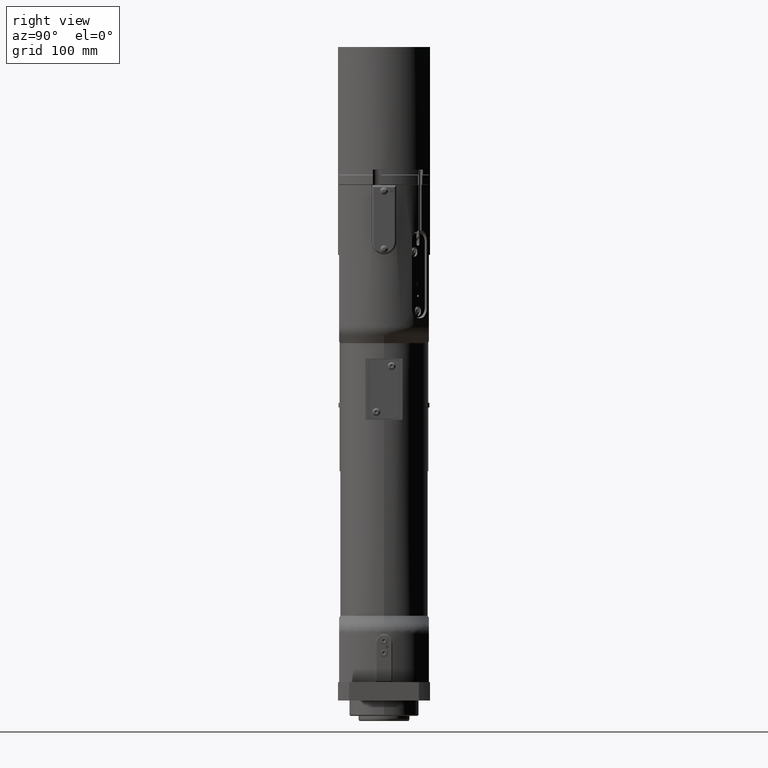
[diagram: clean part render]
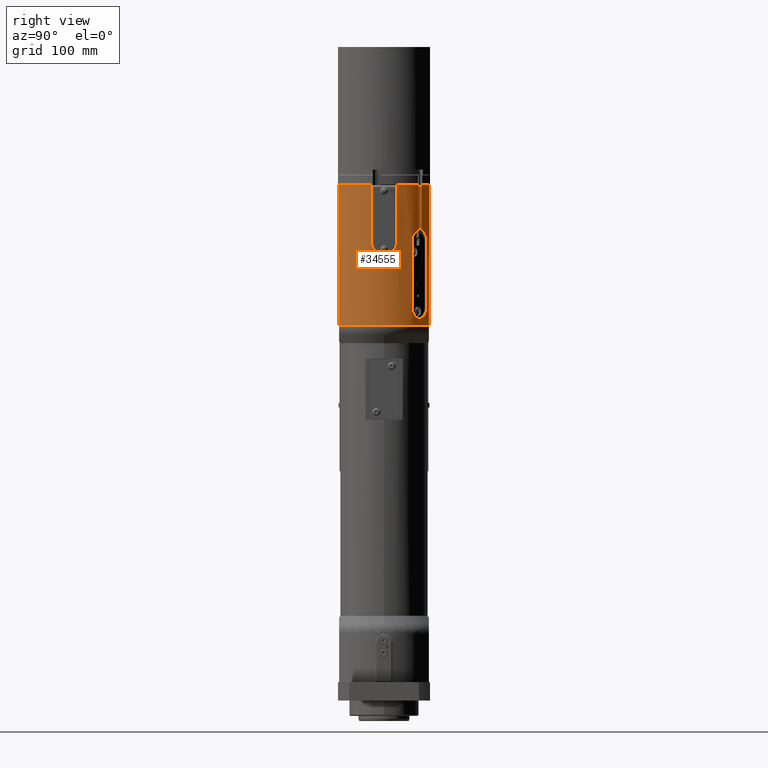
[diagram: same view with one face highlighted and labeled with its STEP entity id]
A machine part, right view. The second image highlights one B-rep face of the part: STEP entity #34555.
In plain terms, the highlighted cylindrical surface (partial cylindrical patch) has radius 50 mm, axis along (-0, 0, 1).
Its self-contained STEP definition (entity closure, byte-faithful):
#1740=B_SPLINE_CURVE_WITH_KNOTS('',3,(#56054,#56055,#56056,#56057,#56058,
#56059,#56060,#56061,#56062,#56063),.UNSPECIFIED.,.F.,.F.,(4,2,2,2,4),(0.,
0.385398252965855,0.770796505931711,1.15617134672731,1.54154618752291),
 .UNSPECIFIED.);
#1741=B_SPLINE_CURVE_WITH_KNOTS('',3,(#56065,#56066,#56067,#56068,#56069,
#56070,#56071,#56072,#56073,#56074),.UNSPECIFIED.,.F.,.F.,(4,2,2,2,4),(-1.54154618752291,
-1.15617134672731,-0.770796505931711,-0.385398252965856,0.),
 .UNSPECIFIED.);
#1742=B_SPLINE_CURVE_WITH_KNOTS('',3,(#56082,#56083,#56084,#56085,#56086,
#56087,#56088,#56089,#56090,#56091),.UNSPECIFIED.,.F.,.F.,(4,2,2,2,4),(3.08309237504583,
3.46849062801169,3.85388888097754,4.23926372177314,4.42858827578205),
 .UNSPECIFIED.);
#1745=B_SPLINE_CURVE_WITH_KNOTS('',3,(#56118,#56119,#56120,#56121,#56122,
#56123,#56124,#56125,#56126,#56127),.UNSPECIFIED.,.F.,.F.,(4,2,2,2,4),(1.73759647430961,
1.92692102831852,2.31229586911412,2.69769412207998,3.08309237504583),
 .UNSPECIFIED.);
#1748=B_SPLINE_CURVE_WITH_KNOTS('',3,(#56179,#56180,#56181,#56182,#56183,
#56184,#56185,#56186,#56187,#56188),.UNSPECIFIED.,.F.,.F.,(4,2,2,2,4),(-1.84628461301213,
-1.38474265699854,-0.923200700984961,-0.461600350492481,0.),
 .UNSPECIFIED.);
#1749=B_SPLINE_CURVE_WITH_KNOTS('',3,(#56190,#56191,#56192,#56193,#56194,
#56195,#56196,#56197,#56198,#56199),.UNSPECIFIED.,.F.,.F.,(4,2,2,2,4),(0.,
0.461600350492481,0.923200700984961,1.38474265699855,1.84628461301213),
 .UNSPECIFIED.);
#2984=FACE_OUTER_BOUND('',#4867,.T.);
#4867=EDGE_LOOP('',(#26944,#26945,#26946,#26947,#26948,#26949,#26950,#26951,
#26952,#26953,#26954,#26955,#26956,#26957,#26958,#26959,#26960,#26961));
#6659=CIRCLE('',#37248,50.);
#6661=CIRCLE('',#37250,50.);
#6663=CIRCLE('',#37253,50.);
#6676=CIRCLE('',#37284,50.);
#9462=LINE('',#56051,#12158);
#9464=LINE('',#56078,#12160);
#9468=LINE('',#56129,#12164);
#9470=LINE('',#56132,#12166);
#9477=LINE('',#56175,#12173);
#9479=LINE('',#56200,#12175);
#9480=LINE('',#56202,#12176);
#9481=LINE('',#56205,#12177);
#12158=VECTOR('',#44558,10.);
#12160=VECTOR('',#44564,10.);
#12164=VECTOR('',#44572,10.);
#12166=VECTOR('',#44576,10.);
#12173=VECTOR('',#44599,10.);
#12175=VECTOR('',#44603,10.);
#12176=VECTOR('',#44604,10.);
#12177=VECTOR('',#44607,10.);
#14972=VERTEX_POINT('',#55952);
#14973=VERTEX_POINT('',#55954);
#14976=VERTEX_POINT('',#55960);
#14977=VERTEX_POINT('',#55962);
#14980=VERTEX_POINT('',#55969);
#14981=VERTEX_POINT('',#55971);
#15004=VERTEX_POINT('',#56047);
#15005=VERTEX_POINT('',#56049);
#15006=VERTEX_POINT('',#56053);
#15007=VERTEX_POINT('',#56064);
#15008=VERTEX_POINT('',#56077);
#15009=VERTEX_POINT('',#56081);
#15013=VERTEX_POINT('',#56116);
#15021=VERTEX_POINT('',#56173);
#15022=VERTEX_POINT('',#56178);
#15023=VERTEX_POINT('',#56189);
#15024=VERTEX_POINT('',#56201);
#15025=VERTEX_POINT('',#56203);
#19224=EDGE_CURVE('',#14972,#14973,#6659,.T.);
#19228=EDGE_CURVE('',#14976,#14977,#6661,.T.);
#19232=EDGE_CURVE('',#14980,#14981,#6663,.T.);
#19263=EDGE_CURVE('',#15004,#15005,#9462,.T.);
#19264=EDGE_CURVE('',#15004,#15006,#1740,.T.);
#19265=EDGE_CURVE('',#15006,#15007,#1741,.T.);
#19267=EDGE_CURVE('',#15008,#15007,#9464,.T.);
#19269=EDGE_CURVE('',#15008,#15009,#1742,.T.);
#19274=EDGE_CURVE('',#15005,#15013,#1745,.F.);
#19275=EDGE_CURVE('',#15013,#14973,#9468,.T.);
#19277=EDGE_CURVE('',#14976,#15009,#9470,.T.);
#19289=EDGE_CURVE('',#14972,#15021,#9477,.T.);
#19291=EDGE_CURVE('',#15022,#15021,#1748,.T.);
#19292=EDGE_CURVE('',#15023,#15022,#1749,.T.);
#19293=EDGE_CURVE('',#15023,#14981,#9479,.T.);
#19294=EDGE_CURVE('',#14980,#15024,#9480,.T.);
#19295=EDGE_CURVE('',#15025,#15024,#6676,.T.);
#19296=EDGE_CURVE('',#15025,#14977,#9481,.T.);
#26944=ORIENTED_EDGE('',*,*,#19275,.T.);
#26945=ORIENTED_EDGE('',*,*,#19224,.F.);
#26946=ORIENTED_EDGE('',*,*,#19289,.T.);
#26947=ORIENTED_EDGE('',*,*,#19291,.F.);
#26948=ORIENTED_EDGE('',*,*,#19292,.F.);
#26949=ORIENTED_EDGE('',*,*,#19293,.T.);
#26950=ORIENTED_EDGE('',*,*,#19232,.F.);
#26951=ORIENTED_EDGE('',*,*,#19294,.T.);
#26952=ORIENTED_EDGE('',*,*,#19295,.F.);
#26953=ORIENTED_EDGE('',*,*,#19296,.T.);
#26954=ORIENTED_EDGE('',*,*,#19228,.F.);
#26955=ORIENTED_EDGE('',*,*,#19277,.T.);
#26956=ORIENTED_EDGE('',*,*,#19269,.F.);
#26957=ORIENTED_EDGE('',*,*,#19267,.T.);
#26958=ORIENTED_EDGE('',*,*,#19265,.F.);
#26959=ORIENTED_EDGE('',*,*,#19264,.F.);
#26960=ORIENTED_EDGE('',*,*,#19263,.T.);
#26961=ORIENTED_EDGE('',*,*,#19274,.T.);
#31594=CYLINDRICAL_SURFACE('',#37283,50.);
#34555=ADVANCED_FACE('',(#2984),#31594,.T.);
#37248=AXIS2_PLACEMENT_3D('',#55955,#44490,#44491);
#37250=AXIS2_PLACEMENT_3D('',#55963,#44496,#44497);
#37253=AXIS2_PLACEMENT_3D('',#55972,#44504,#44505);
#37283=AXIS2_PLACEMENT_3D('',#56177,#44601,#44602);
#37284=AXIS2_PLACEMENT_3D('',#56204,#44605,#44606);
#44490=DIRECTION('center_axis',(-1.66741034889409E-13,7.79443320540401E-15,
1.));
#44491=DIRECTION('ref_axis',(-1.,1.29112725371859E-13,-1.6674103488941E-13));
#44496=DIRECTION('center_axis',(-1.66741034889409E-13,7.79443320540401E-15,
1.));
#44497=DIRECTION('ref_axis',(-1.,1.29112725371859E-13,-1.6674103488941E-13));
#44504=DIRECTION('center_axis',(-1.66741034889409E-13,7.79443320540401E-15,
1.));
#44505=DIRECTION('ref_axis',(-1.,1.29112725371859E-13,-1.6674103488941E-13));
#44558=DIRECTION('',(-1.66741034889409E-13,7.79443320540401E-15,1.));
#44564=DIRECTION('',(1.66741034889409E-13,-7.79443320540401E-15,-1.));
#44572=DIRECTION('',(-1.66741034889409E-13,7.79443320540401E-15,1.));
#44576=DIRECTION('',(1.66741034889409E-13,-7.79443320540401E-15,-1.));
#44599=DIRECTION('',(1.66741034889409E-13,-7.79443320540401E-15,-1.));
#44601=DIRECTION('center_axis',(-1.66741034889409E-13,7.79443320540401E-15,
1.));
#44602=DIRECTION('ref_axis',(1.,-1.28990260691945E-13,1.6674103488941E-13));
#44603=DIRECTION('',(-1.66741034889409E-13,7.79443320540401E-15,1.));
#44604=DIRECTION('',(1.66741034889409E-13,-7.79443320540401E-15,-1.));
#44605=DIRECTION('center_axis',(1.66741034889409E-13,-7.79443320540401E-15,
-1.));
#44606=DIRECTION('ref_axis',(-1.,1.29112725371859E-13,-1.6674103488941E-13));
#44607=DIRECTION('',(-1.66741034889409E-13,7.79443320540401E-15,1.));
#55952=CARTESIAN_POINT('',(48.4887615845368,12.1999999999768,487.000000000063));
#55954=CARTESIAN_POINT('',(36.7412570277084,33.9128299029166,487.000000000061));
#55955=CARTESIAN_POINT('Origin',(1.95881946760322E-11,-1.69390645144862E-11,
487.000000000055));
#55960=CARTESIAN_POINT('',(33.9128299029626,36.7412570276632,487.000000000061));
#55962=CARTESIAN_POINT('',(23.7486841741011,43.99999999998,487.000000000059));
#55963=CARTESIAN_POINT('Origin',(1.95881946760322E-11,-1.69390645144862E-11,
487.000000000055));
#55969=CARTESIAN_POINT('',(23.7486841740897,-44.00000000002,487.00000000006));
#55971=CARTESIAN_POINT('',(48.4887615845337,-12.2000000000232,487.000000000064));
#55972=CARTESIAN_POINT('Origin',(1.95881946760322E-11,-1.69390645144862E-11,
487.000000000055));
#56047=CARTESIAN_POINT('',(41.8243368506954,27.3993585144233,366.500000000062));
#56049=CARTESIAN_POINT('',(41.8243368506844,27.3993585144239,432.500000000062));
#56051=CARTESIAN_POINT('',(41.8243368507011,27.3993585144231,332.000000000062));
#56053=CARTESIAN_POINT('',(35.3553390593733,35.3553390593049,356.300000000061));
#56054=CARTESIAN_POINT('Ctrl Pts',(41.8243368506954,27.3993585144233,366.500000000062));
#56055=CARTESIAN_POINT('Ctrl Pts',(41.8243368506956,27.3993585144233,365.215339156843));
#56056=CARTESIAN_POINT('Ctrl Pts',(41.6817418440653,27.6208953277816,363.847598303335));
#56057=CARTESIAN_POINT('Ctrl Pts',(41.0862778233704,28.4991093081798,361.335647418654));
#56058=CARTESIAN_POINT('Ctrl Pts',(40.631371606269,29.1534816708785,360.191115470836));
#56059=CARTESIAN_POINT('Ctrl Pts',(39.539798456851,30.6176107628574,358.38396108525));
#56060=CARTESIAN_POINT('Ctrl Pts',(38.8292952335965,31.5257530639894,357.599539697129));
#56061=CARTESIAN_POINT('Ctrl Pts',(37.1922932966804,33.4413007197644,356.557460786716));
#56062=CARTESIAN_POINT('Ctrl Pts',(36.2636762701241,34.4470018485539,356.300000000061));
#56063=CARTESIAN_POINT('Ctrl Pts',(35.3553390593733,35.3553390593049,356.300000000061));
#56064=CARTESIAN_POINT('',(27.3993585144917,41.8243368506308,366.50000000006));
#56065=CARTESIAN_POINT('Ctrl Pts',(35.3553390593733,35.3553390593049,356.300000000061));
#56066=CARTESIAN_POINT('Ctrl Pts',(34.4470018486226,36.2636762700558,356.300000000061));
#56067=CARTESIAN_POINT('Ctrl Pts',(33.4413007198333,37.1922932966124,356.557460786715));
#56068=CARTESIAN_POINT('Ctrl Pts',(31.5257530640585,38.8292952335293,357.599539697128));
#56069=CARTESIAN_POINT('Ctrl Pts',(30.6176107629265,39.5397984567842,358.383961085249));
#56070=CARTESIAN_POINT('Ctrl Pts',(29.1534816709476,40.6313716062028,360.191115470834));
#56071=CARTESIAN_POINT('Ctrl Pts',(28.4991093082488,41.0862778233046,361.335647418651));
#56072=CARTESIAN_POINT('Ctrl Pts',(27.6208953278503,41.6817418440002,363.847598303333));
#56073=CARTESIAN_POINT('Ctrl Pts',(27.3993585144919,41.8243368506308,365.21533915684));
#56074=CARTESIAN_POINT('Ctrl Pts',(27.3993585144917,41.8243368506308,366.50000000006));
#56077=CARTESIAN_POINT('',(27.3993585144807,41.8243368506313,432.50000000006));
#56078=CARTESIAN_POINT('',(27.3993585144974,41.8243368506305,332.00000000006));
#56081=CARTESIAN_POINT('',(33.91282990297,36.7412570276628,442.501999800101));
#56082=CARTESIAN_POINT('Ctrl Pts',(27.3993585144807,41.8243368506313,432.50000000006));
#56083=CARTESIAN_POINT('Ctrl Pts',(27.3993585144805,41.8243368506313,433.784660843279));
#56084=CARTESIAN_POINT('Ctrl Pts',(27.6208953278384,41.6817418440008,435.152401696786));
#56085=CARTESIAN_POINT('Ctrl Pts',(28.4991093082361,41.0862778233052,437.664352581468));
#56086=CARTESIAN_POINT('Ctrl Pts',(29.1534816709345,40.6313716062034,438.808884529286));
#56087=CARTESIAN_POINT('Ctrl Pts',(30.6176107629128,39.5397984567848,440.616038914872));
#56088=CARTESIAN_POINT('Ctrl Pts',(31.5257530640445,38.8292952335299,441.400460302993));
#56089=CARTESIAN_POINT('Ctrl Pts',(32.9540560588898,37.608686201947,442.17747277988));
#56090=CARTESIAN_POINT('Ctrl Pts',(33.4363842877987,37.1810247550744,442.372453573245));
#56091=CARTESIAN_POINT('Ctrl Pts',(33.91282990297,36.7412570276628,442.501999800101));
#56116=CARTESIAN_POINT('',(36.7412570277159,33.9128299029163,442.501999800101));
#56118=CARTESIAN_POINT('Ctrl Pts',(36.7412570277159,33.9128299029163,442.501999800101));
#56119=CARTESIAN_POINT('Ctrl Pts',(37.1810247551274,33.4363842877448,442.372453573245));
#56120=CARTESIAN_POINT('Ctrl Pts',(37.6086862019998,32.9540560588358,442.177472779881));
#56121=CARTESIAN_POINT('Ctrl Pts',(38.8292952335825,31.52575306399,441.400460302994));
#56122=CARTESIAN_POINT('Ctrl Pts',(39.5397984568373,30.617610762858,440.616038914873));
#56123=CARTESIAN_POINT('Ctrl Pts',(40.6313716062559,29.1534816708791,438.808884529288));
#56124=CARTESIAN_POINT('Ctrl Pts',(41.0862778233577,28.4991093081804,437.66435258147));
#56125=CARTESIAN_POINT('Ctrl Pts',(41.6817418440535,27.6208953277821,435.152401696789));
#56126=CARTESIAN_POINT('Ctrl Pts',(41.8243368506842,27.3993585144239,433.784660843282));
#56127=CARTESIAN_POINT('Ctrl Pts',(41.8243368506844,27.3993585144239,432.500000000062));
#56129=CARTESIAN_POINT('',(36.7412570277343,33.9128299029154,332.000000000061));
#56132=CARTESIAN_POINT('',(33.9128299029885,36.741257027662,332.000000000061));
#56173=CARTESIAN_POINT('',(48.4887615845461,12.1999999999764,431.000000000063));
#56175=CARTESIAN_POINT('',(48.4887615845626,12.1999999999756,332.000000000063));
#56177=CARTESIAN_POINT('Origin',(4.54330550838906E-11,-1.81472016613238E-11,
332.000000000055));
#56178=CARTESIAN_POINT('',(50.000000000031,-2.39128323731644E-11,418.800000000064));
#56179=CARTESIAN_POINT('Ctrl Pts',(50.000000000031,-2.3910873281352E-11,
418.800000000064));
#56180=CARTESIAN_POINT('Ctrl Pts',(50.0000000000312,1.53847318668804,418.800000000064));
#56181=CARTESIAN_POINT('Ctrl Pts',(49.9218731626598,3.17530949541435,419.108731701668));
#56182=CARTESIAN_POINT('Ctrl Pts',(49.6396153403855,6.17936885659806,420.35574094875));
#56183=CARTESIAN_POINT('Ctrl Pts',(49.4392839988133,7.54708739603326,421.293681935169));
#56184=CARTESIAN_POINT('Ctrl Pts',(49.0610474047465,9.70645465824892,423.453049197384));
#56185=CARTESIAN_POINT('Ctrl Pts',(48.8580455101122,10.6442890727132,424.820710700758));
#56186=CARTESIAN_POINT('Ctrl Pts',(48.5696240917454,11.8912205945062,427.824568350215));
#56187=CARTESIAN_POINT('Ctrl Pts',(48.4887615845464,12.1999999999764,429.461332165088));
#56188=CARTESIAN_POINT('Ctrl Pts',(48.4887615845461,12.1999999999764,431.000000000063));
#56189=CARTESIAN_POINT('',(48.488761584543,-12.2000000000236,431.000000000064));
#56190=CARTESIAN_POINT('Ctrl Pts',(48.488761584543,-12.2000000000236,431.000000000064));
#56191=CARTESIAN_POINT('Ctrl Pts',(48.4887615845433,-12.2000000000236,429.461332165089));
#56192=CARTESIAN_POINT('Ctrl Pts',(48.5696240917423,-11.8912205945535,427.824568350215));
#56193=CARTESIAN_POINT('Ctrl Pts',(48.8580455101095,-10.6442890727607,424.820710700758));
#56194=CARTESIAN_POINT('Ctrl Pts',(49.061047404744,-9.70645465829645,423.453049197385));
#56195=CARTESIAN_POINT('Ctrl Pts',(49.4392839988113,-7.54708739608091,421.293681935169));
#56196=CARTESIAN_POINT('Ctrl Pts',(49.6396153403839,-6.17936885664583,420.35574094875));
#56197=CARTESIAN_POINT('Ctrl Pts',(49.9218731626589,-3.17530949546215,419.108731701668));
#56198=CARTESIAN_POINT('Ctrl Pts',(50.0000000000308,-1.53847318673587,418.800000000064));
#56199=CARTESIAN_POINT('Ctrl Pts',(50.000000000031,-2.39210040664517E-11,
418.800000000064));
#56200=CARTESIAN_POINT('',(48.4887615845595,-12.2000000000244,332.000000000063));
#56201=CARTESIAN_POINT('',(23.7486841741126,-44.0000000000211,349.483339501664));
#56202=CARTESIAN_POINT('',(23.7486841741155,-44.0000000000212,332.00000000006));
#56203=CARTESIAN_POINT('',(23.748684174124,43.9999999999789,349.483339501664));
#56204=CARTESIAN_POINT('Origin',(4.25178649620702E-11,-1.80109289393712E-11,
349.48333950166));
#56205=CARTESIAN_POINT('',(23.7486841741269,43.9999999999788,332.000000000059));